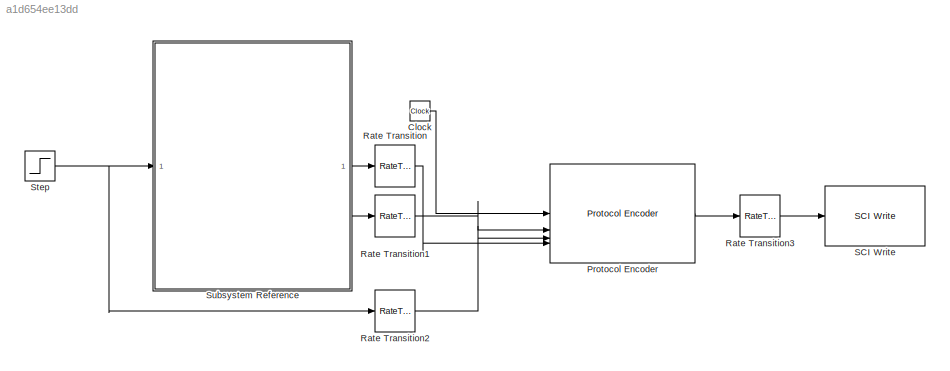
MODEL slx_a1d654ee13dd
KIND model
CONFIG AbsTol = auto
CONFIG EnableMultiTasking = on
CONFIG FixedStep = 0.001
CONFIG MaxStep = auto
CONFIG MinStep = auto
CONFIG RelTol = 1e-3
CONFIG SampleTimeConstraint = Unconstrained
CONFIG SolverName = FixedStepAuto
CONFIG StartTime = 0.0
CONFIG StopTime = inf
BLOCK [Clock] Clock
  Decimation = 1
BLOCK [Reference] Protocol Encoder  REF=embeddedblockslib/Protocol Encoder
  LibrarySourceBlock = nucleoutilitieslib/Protocol Encoder
  SourceBlock = embeddedblockslib/Protocol Encoder
  SourceType = matlabshared.embedded_utilities.blocks.ProtocolEncoderBlock
BLOCK [RateTransition] Rate Transition
BLOCK [RateTransition] Rate Transition1
BLOCK [RateTransition] Rate Transition2
BLOCK [RateTransition] Rate Transition3
BLOCK [Reference] SCI Write  REF=mbedblockslib/SCI Write
  LibrarySourceBlock = stmnucleorootlib/Common/SCI Write
  SourceBlock = mbedblockslib/SCI Write
  SourceType = mbed.SCIWrite
BLOCK [Step] Step
  After = 0
  SampleTime = 0
  Time = 2
BLOCK [SubSystem] Subsystem Reference
  ReferencedSubsystem = pololu_37D_hardware_interface
  Ts = 0.005
  pwmFreq = 2000
LINE Clock:1 -> Protocol Encoder:1
LINE Protocol Encoder:1 -> Rate Transition3:1
LINE Rate Transition1:1 -> Protocol Encoder:2
LINE Rate Transition2:1 -> Protocol Encoder:3
LINE Rate Transition3:1 -> SCI Write:1
LINE Rate Transition:1 -> Protocol Encoder:4
NET Step:1 -> Rate Transition2:1, Subsystem Reference:1
LINE Subsystem Reference:3 -> Rate Transition:1
LINE Subsystem Reference:4 -> Rate Transition1:1
note: NET lines group one-source signal fan-out (src -> all destinations, sorted); 1:1 wires keep LINE
